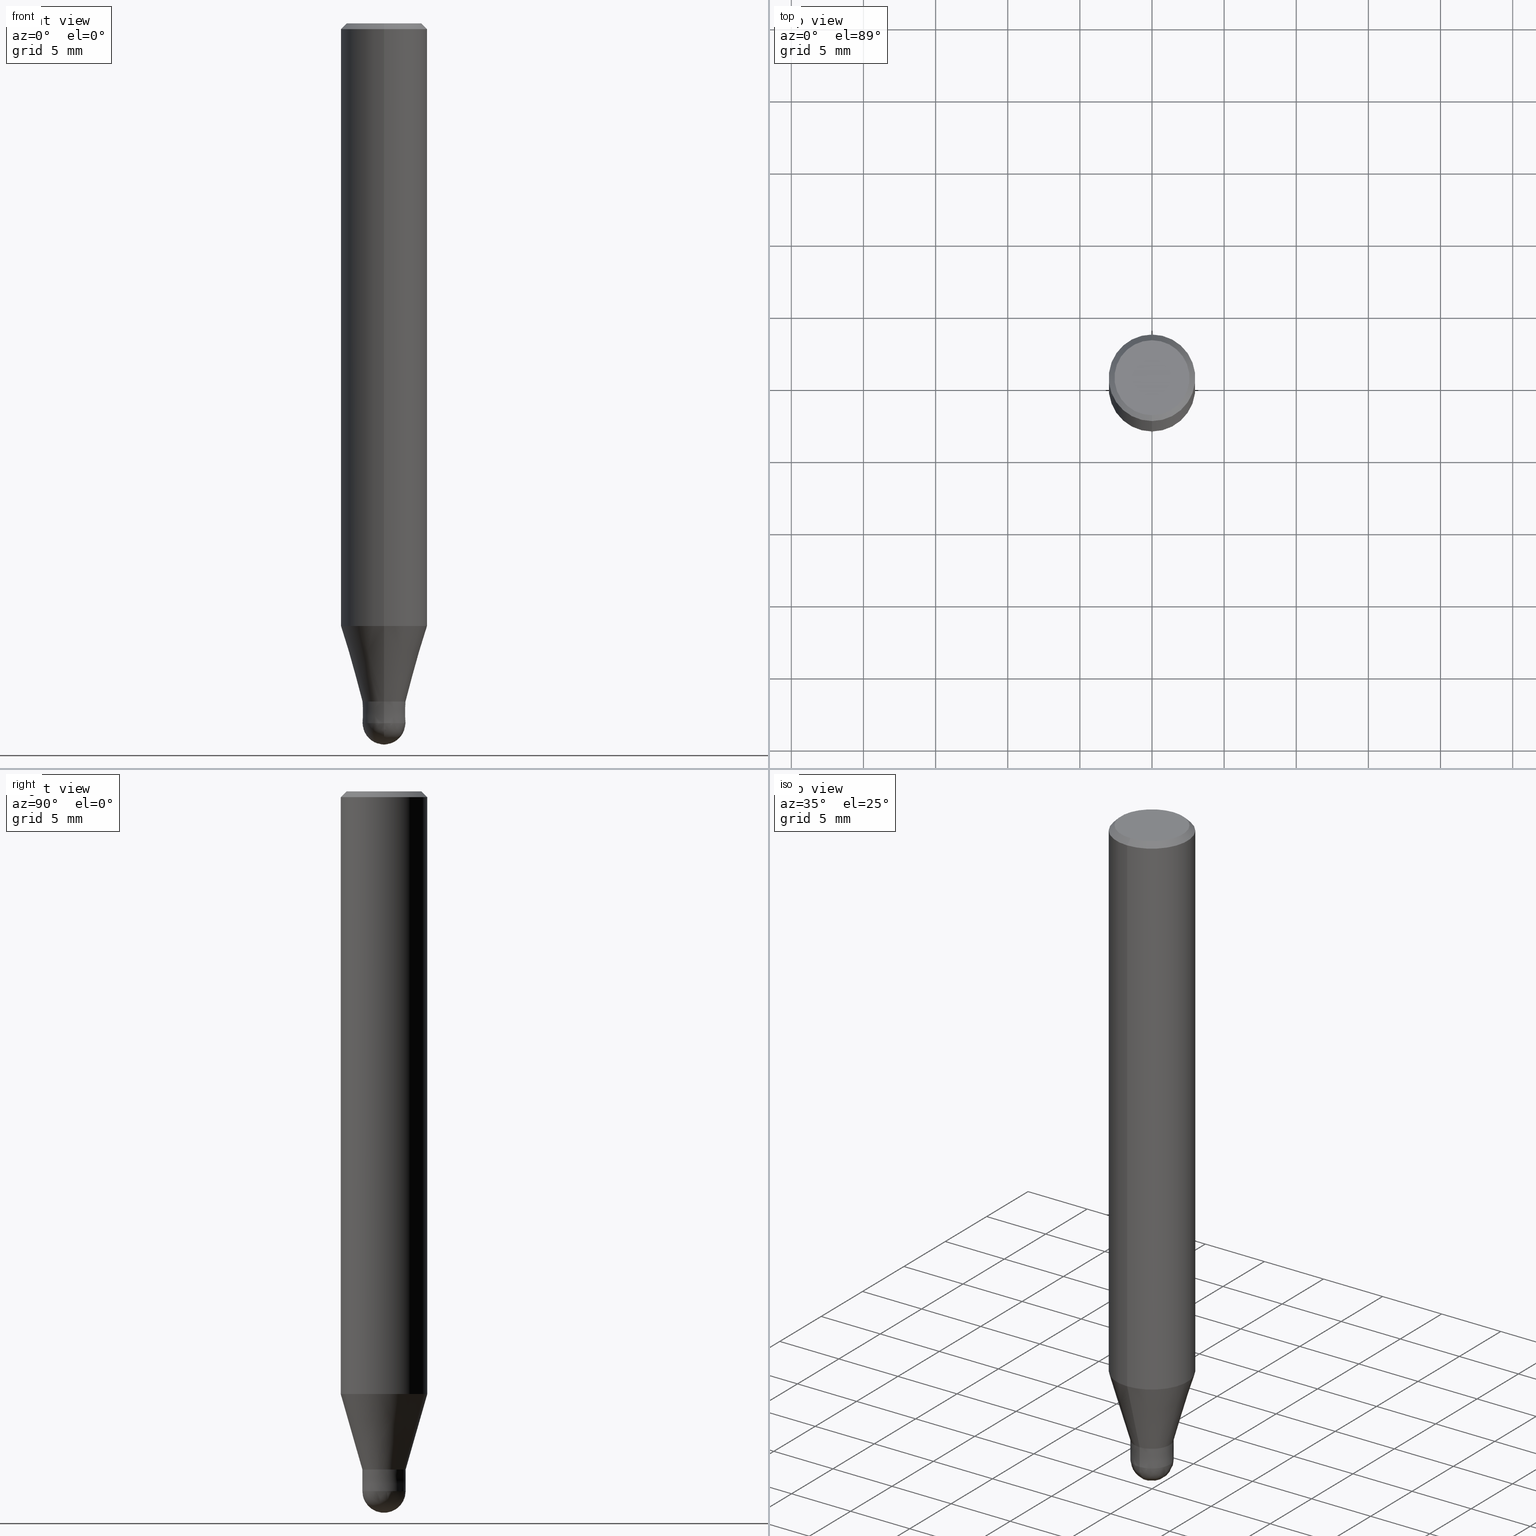
[diagram: canonical four-view strip — front | top / right | iso, engineering-drawing reading convention]
A machine part, canonical four-view strip (front | top / right | iso — engineering-drawing reading convention). The complete STEP part file that produces these views, byte-faithful:
ISO-10303-21;
HEADER;
FILE_DESCRIPTION(('no description'),'unknown implementation level');
FILE_NAME('HSB2030-0300-Huellk.stp','  ',('CIMSOURCE GmbH'),('CADClick - KiM GmbH - www.kimweb.de'),'unknown preprocess','ACIS','unknown authorization');
FILE_SCHEMA(('automotive_design'));
ENDSEC;
DATA;
#1=MECHANICAL_DESIGN_GEOMETRIC_PRESENTATION_REPRESENTATION(' ',(#14,#15,#16,#17,#18,#19,#20,#21,#22,#23,#24,#25,#26,#27,#28,#29,#30,#31,#32,#33,#34,#35,#36,#37,#38,#39,#40,#41,#42,#43,#44,#45,#46,#47,#48,#49,#50,#51,#52,#53,#54,#55,#56,#57,#58,#59,#60,#61,#62,#63,#64,#65,#66),#10);
#2=PRODUCT_DEFINITION_CONTEXT('',#67,'design');
#3=APPLICATION_PROTOCOL_DEFINITION('INTERNATIONAL STANDARD','automotive_design',1994,#67);
#4=PRODUCT_CATEGORY_RELATIONSHIP('NONE','NONE',#68,#69);
#5=SHAPE_DEFINITION_REPRESENTATION(#70,#71);
#6=PRODUCT_DEFINITION_CONTEXT('',#72,'design');
#7=APPLICATION_PROTOCOL_DEFINITION('INTERNATIONAL STANDARD','automotive_design',1994,#72);
#8=PRODUCT_CATEGORY_RELATIONSHIP('NONE','NONE',#73,#74);
#9=SHAPE_DEFINITION_REPRESENTATION(#75,#76);
#10= (GEOMETRIC_REPRESENTATION_CONTEXT(3)GLOBAL_UNCERTAINTY_ASSIGNED_CONTEXT((#79))GLOBAL_UNIT_ASSIGNED_CONTEXT((#81,#82,#83))REPRESENTATION_CONTEXT('NONE','WORKSPACE'));
#14=STYLED_ITEM('',(#85),#86);
#15=STYLED_ITEM('',(#87),#88);
#16=STYLED_ITEM('',(#89),#90);
#17=STYLED_ITEM('',(#91),#92);
#18=STYLED_ITEM('',(#93),#94);
#19=STYLED_ITEM('',(#95),#96);
#20=STYLED_ITEM('',(#97),#98);
#21=STYLED_ITEM('',(#99),#100);
#22=STYLED_ITEM('',(#101),#102);
#23=STYLED_ITEM('',(#103),#104);
#24=STYLED_ITEM('',(#105),#106);
#25=STYLED_ITEM('',(#107),#108);
#26=STYLED_ITEM('',(#109),#110);
#27=STYLED_ITEM('',(#111),#112);
#28=STYLED_ITEM('',(#113),#114);
#29=STYLED_ITEM('',(#115),#116);
#30=STYLED_ITEM('',(#117),#118);
#31=STYLED_ITEM('',(#119),#120);
#32=STYLED_ITEM('',(#121),#122);
#33=STYLED_ITEM('',(#123),#124);
#34=STYLED_ITEM('',(#125),#126);
#35=STYLED_ITEM('',(#127),#128);
#36=STYLED_ITEM('',(#129),#130);
#37=STYLED_ITEM('',(#131),#132);
#38=STYLED_ITEM('',(#133),#134);
#39=STYLED_ITEM('',(#135),#136);
#40=STYLED_ITEM('',(#137),#138);
#41=STYLED_ITEM('',(#139),#140);
#42=STYLED_ITEM('',(#141),#142);
#43=STYLED_ITEM('',(#143),#144);
#44=STYLED_ITEM('',(#145),#146);
#45=STYLED_ITEM('',(#147),#148);
#46=STYLED_ITEM('',(#149),#150);
#47=STYLED_ITEM('',(#151),#152);
#48=STYLED_ITEM('',(#153),#154);
#49=STYLED_ITEM('',(#155),#156);
#50=STYLED_ITEM('',(#157),#158);
#51=STYLED_ITEM('',(#159),#160);
#52=STYLED_ITEM('',(#161),#162);
#53=STYLED_ITEM('',(#163),#164);
#54=STYLED_ITEM('',(#165),#166);
#55=STYLED_ITEM('',(#167),#168);
#56=STYLED_ITEM('',(#169),#170);
#57=STYLED_ITEM('',(#171),#172);
#58=STYLED_ITEM('',(#173),#174);
#59=STYLED_ITEM('',(#175),#176);
#60=STYLED_ITEM('',(#177),#178);
#61=STYLED_ITEM('',(#179),#180);
#62=STYLED_ITEM('',(#181),#182);
#63=STYLED_ITEM('',(#183),#184);
#64=STYLED_ITEM('',(#185),#186);
#65=STYLED_ITEM('',(#187),#188);
#66=STYLED_ITEM('',(#189),#190);
#67=APPLICATION_CONTEXT(' ');
#68=PRODUCT_CATEGORY('part','NONE');
#69=PRODUCT_RELATED_PRODUCT_CATEGORY('detail',' ',(#191));
#70=PRODUCT_DEFINITION_SHAPE('NONE','NONE',#192);
#71=ADVANCED_BREP_SHAPE_REPRESENTATION('1',(#162,#193),#10);
#72=APPLICATION_CONTEXT(' ');
#73=PRODUCT_CATEGORY('part','NONE');
#74=PRODUCT_RELATED_PRODUCT_CATEGORY('detail',' ',(#194));
#75=PRODUCT_DEFINITION_SHAPE('NONE','NONE',#195);
#76=ADVANCED_BREP_SHAPE_REPRESENTATION('2',(#116,#196),#10);
#79=UNCERTAINTY_MEASURE_WITH_UNIT(LENGTH_MEASURE(1.0E-006),#81,'','');
#81= (CONVERSION_BASED_UNIT('MILLIMETRE',#199)LENGTH_UNIT()NAMED_UNIT(#202));
#82= (NAMED_UNIT(#204)PLANE_ANGLE_UNIT()SI_UNIT($,.RADIAN.));
#83= (NAMED_UNIT(#204)SOLID_ANGLE_UNIT()SI_UNIT($,.STERADIAN.));
#85=PRESENTATION_STYLE_ASSIGNMENT((#210));
#86=EDGE_CURVE('',#172,#140,#211,.T.);
#87=PRESENTATION_STYLE_ASSIGNMENT((#212));
#88=VERTEX_POINT('',#213);
#89=PRESENTATION_STYLE_ASSIGNMENT((#214));
#90=EDGE_CURVE('',#132,#168,#215,.T.);
#91=PRESENTATION_STYLE_ASSIGNMENT((#216));
#92=EDGE_CURVE('',#168,#102,#217,.T.);
#93=PRESENTATION_STYLE_ASSIGNMENT((#218));
#94=VERTEX_POINT('',#219);
#95=PRESENTATION_STYLE_ASSIGNMENT((#220));
#96=EDGE_CURVE('',#122,#136,#221,.T.);
#97=PRESENTATION_STYLE_ASSIGNMENT((#222));
#98=VERTEX_POINT('',#223);
#99=PRESENTATION_STYLE_ASSIGNMENT((#224));
#100=EDGE_CURVE('',#114,#134,#225,.T.);
#101=PRESENTATION_STYLE_ASSIGNMENT((#226));
#102=VERTEX_POINT('',#227);
#103=PRESENTATION_STYLE_ASSIGNMENT((#228));
#104=EDGE_CURVE('',#102,#112,#229,.T.);
#105=PRESENTATION_STYLE_ASSIGNMENT((#230));
#106=ADVANCED_FACE('',(#231),#232,.T.);
#107=PRESENTATION_STYLE_ASSIGNMENT((#233));
#108=EDGE_CURVE('',#98,#88,#234,.T.);
#109=PRESENTATION_STYLE_ASSIGNMENT((#235));
#110=ADVANCED_FACE('',(#236),#237,.T.);
#111=PRESENTATION_STYLE_ASSIGNMENT((#238));
#112=VERTEX_POINT('',#239);
#113=PRESENTATION_STYLE_ASSIGNMENT((#240));
#114=VERTEX_POINT('',#241);
#115=PRESENTATION_STYLE_ASSIGNMENT((#242));
#116=MANIFOLD_SOLID_BREP('2',#243);
#117=PRESENTATION_STYLE_ASSIGNMENT((#244));
#118=EDGE_CURVE('',#102,#168,#245,.T.);
#119=PRESENTATION_STYLE_ASSIGNMENT((#246));
#120=ADVANCED_FACE('',(#247),#248,.T.);
#121=PRESENTATION_STYLE_ASSIGNMENT((#249));
#122=VERTEX_POINT('',#250);
#123=PRESENTATION_STYLE_ASSIGNMENT((#251));
#124=ADVANCED_FACE('',(#252),#253,.T.);
#125=PRESENTATION_STYLE_ASSIGNMENT((#254));
#126=EDGE_CURVE('',#94,#148,#255,.T.);
#127=PRESENTATION_STYLE_ASSIGNMENT((#256));
#128=EDGE_CURVE('',#172,#140,#257,.T.);
#129=PRESENTATION_STYLE_ASSIGNMENT((#258));
#130=EDGE_CURVE('',#140,#172,#259,.T.);
#131=PRESENTATION_STYLE_ASSIGNMENT((#260));
#132=VERTEX_POINT('',#261);
#133=PRESENTATION_STYLE_ASSIGNMENT((#262));
#134=VERTEX_POINT('',#263);
#135=PRESENTATION_STYLE_ASSIGNMENT((#264));
#136=VERTEX_POINT('',#265);
#137=PRESENTATION_STYLE_ASSIGNMENT((#266));
#138=EDGE_CURVE('',#94,#88,#267,.T.);
#139=PRESENTATION_STYLE_ASSIGNMENT((#268));
#140=VERTEX_POINT('',#269);
#141=PRESENTATION_STYLE_ASSIGNMENT((#270));
#142=ADVANCED_FACE('',(#271),#272,.T.);
#143=PRESENTATION_STYLE_ASSIGNMENT((#273));
#144=EDGE_CURVE('',#88,#94,#274,.T.);
#145=PRESENTATION_STYLE_ASSIGNMENT((#275));
#146=ADVANCED_FACE('',(#276,#277),#278,.T.);
#147=PRESENTATION_STYLE_ASSIGNMENT((#279));
#148=VERTEX_POINT('',#280);
#149=PRESENTATION_STYLE_ASSIGNMENT((#281));
#150=ADVANCED_FACE('',(#282),#283,.T.);
#151=PRESENTATION_STYLE_ASSIGNMENT((#284));
#152=EDGE_CURVE('',#134,#102,#285,.T.);
#153=PRESENTATION_STYLE_ASSIGNMENT((#286));
#154=EDGE_CURVE('',#112,#132,#287,.T.);
#155=PRESENTATION_STYLE_ASSIGNMENT((#288));
#156=ADVANCED_FACE('',(#289),#290,.T.);
#157=PRESENTATION_STYLE_ASSIGNMENT((#291));
#158=EDGE_CURVE('',#122,#140,#292,.T.);
#159=PRESENTATION_STYLE_ASSIGNMENT((#293));
#160=ADVANCED_FACE('',(#294),#295,.T.);
#161=PRESENTATION_STYLE_ASSIGNMENT((#296));
#162=MANIFOLD_SOLID_BREP('1',#297);
#163=PRESENTATION_STYLE_ASSIGNMENT((#298));
#164=EDGE_CURVE('',#172,#136,#299,.T.);
#165=PRESENTATION_STYLE_ASSIGNMENT((#300));
#166=ADVANCED_FACE('',(#301),#302,.T.);
#167=PRESENTATION_STYLE_ASSIGNMENT((#303));
#168=VERTEX_POINT('',#304);
#169=PRESENTATION_STYLE_ASSIGNMENT((#305));
#170=EDGE_CURVE('',#98,#148,#306,.T.);
#171=PRESENTATION_STYLE_ASSIGNMENT((#307));
#172=VERTEX_POINT('',#308);
#173=PRESENTATION_STYLE_ASSIGNMENT((#309));
#174=EDGE_CURVE('',#148,#98,#310,.T.);
#175=PRESENTATION_STYLE_ASSIGNMENT((#311));
#176=ADVANCED_FACE('',(#312),#313,.T.);
#177=PRESENTATION_STYLE_ASSIGNMENT((#314));
#178=EDGE_CURVE('',#136,#122,#315,.T.);
#179=PRESENTATION_STYLE_ASSIGNMENT((#316));
#180=EDGE_CURVE('',#134,#114,#317,.T.);
#181=PRESENTATION_STYLE_ASSIGNMENT((#318));
#182=ADVANCED_FACE('',(#319),#320,.T.);
#183=PRESENTATION_STYLE_ASSIGNMENT((#321));
#184=ADVANCED_FACE('',(#322),#323,.T.);
#185=PRESENTATION_STYLE_ASSIGNMENT((#324));
#186=EDGE_CURVE('',#168,#114,#325,.T.);
#187=PRESENTATION_STYLE_ASSIGNMENT((#326));
#188=EDGE_CURVE('',#132,#112,#327,.T.);
#189=PRESENTATION_STYLE_ASSIGNMENT((#328));
#190=ADVANCED_FACE('',(#329),#330,.T.);
#191=PRODUCT('1','1','PART-1-DESC',(#331));
#192=PRODUCT_DEFINITION('NONE','NONE',#332,#2);
#193=AXIS2_PLACEMENT_3D('',#333,#334,#335);
#194=PRODUCT('2','2','PART-2-DESC',(#336));
#195=PRODUCT_DEFINITION('NONE','NONE',#337,#6);
#196=AXIS2_PLACEMENT_3D('',#338,#339,#340);
#199=LENGTH_MEASURE_WITH_UNIT(LENGTH_MEASURE(1.0),#341);
#202=DIMENSIONAL_EXPONENTS(1.0,0.0,0.0,0.0,0.0,0.0,0.0);
#204=DIMENSIONAL_EXPONENTS(0.0,0.0,0.0,0.0,0.0,0.0,0.0);
#210=CURVE_STYLE('',#342,POSITIVE_LENGTH_MEASURE(1.0E-006),#343);
#211=CIRCLE('',#344,1.5);
#212=POINT_STYLE(' ',#345,POSITIVE_LENGTH_MEASURE(1.0E-006),#346);
#213=CARTESIAN_POINT('',(0.0,1.49995,-47.0));
#214=CURVE_STYLE('',#347,POSITIVE_LENGTH_MEASURE(1.0E-006),#348);
#215=LINE('',#349,#350);
#216=CURVE_STYLE('',#351,POSITIVE_LENGTH_MEASURE(1.0E-006),#352);
#217=CIRCLE('',#353,3.0);
#218=POINT_STYLE(' ',#354,POSITIVE_LENGTH_MEASURE(1.0E-006),#355);
#219=CARTESIAN_POINT('',(1.83684830041587E-016,-1.49995,-47.0));
#220=CURVE_STYLE('',#356,POSITIVE_LENGTH_MEASURE(1.0E-006),#357);
#221=CIRCLE('',#358,1.4999);
#222=POINT_STYLE(' ',#359,POSITIVE_LENGTH_MEASURE(1.0E-006),#360);
#223=CARTESIAN_POINT('',(0.0,2.99995,-41.769));
#224=CURVE_STYLE('',#361,POSITIVE_LENGTH_MEASURE(1.0E-006),#362);
#225=CIRCLE('',#363,2.6);
#226=POINT_STYLE(' ',#364,POSITIVE_LENGTH_MEASURE(1.0E-006),#365);
#227=CARTESIAN_POINT('',(0.0,3.0,-0.399999999999999));
#228=CURVE_STYLE('',#366,POSITIVE_LENGTH_MEASURE(1.0E-006),#367);
#229=LINE('',#368,#369);
#230=SURFACE_STYLE_USAGE(.BOTH.,#370);
#231=FACE_OUTER_BOUND('',#371,.T.);
#232=PLANE('',#372);
#233=CURVE_STYLE('',#373,POSITIVE_LENGTH_MEASURE(1.0E-006),#374);
#234=LINE('',#375,#376);
#235=SURFACE_STYLE_USAGE(.BOTH.,#377);
#236=FACE_OUTER_BOUND('',#378,.T.);
#237=CYLINDRICAL_SURFACE('',#379,3.0);
#238=POINT_STYLE(' ',#380,POSITIVE_LENGTH_MEASURE(1.0E-006),#381);
#239=CARTESIAN_POINT('',(0.0,3.0,-41.769));
#240=POINT_STYLE(' ',#382,POSITIVE_LENGTH_MEASURE(1.0E-006),#383);
#241=CARTESIAN_POINT('',(3.18397651993818E-016,-2.6,0.0));
#242=SURFACE_STYLE_USAGE(.BOTH.,#384);
#243=CLOSED_SHELL('',(#156,#190,#106,#176,#184));
#244=CURVE_STYLE('',#385,POSITIVE_LENGTH_MEASURE(1.0E-006),#386);
#245=CIRCLE('',#387,3.0);
#246=SURFACE_STYLE_USAGE(.BOTH.,#388);
#247=FACE_OUTER_BOUND('',#389,.T.);
#248=PLANE('',#390);
#249=POINT_STYLE(' ',#391,POSITIVE_LENGTH_MEASURE(1.0E-006),#392);
#250=CARTESIAN_POINT('',(0.0,1.4999,-47.0));
#251=SURFACE_STYLE_USAGE(.BOTH.,#393);
#252=FACE_OUTER_BOUND('',#394,.T.);
#253=CYLINDRICAL_SURFACE('',#395,3.0);
#254=CURVE_STYLE('',#396,POSITIVE_LENGTH_MEASURE(1.0E-006),#397);
#255=LINE('',#398,#399);
#256=CURVE_STYLE('',#400,POSITIVE_LENGTH_MEASURE(1.0E-006),#401);
#257=CIRCLE('',#402,1.5);
#258=CURVE_STYLE('',#403,POSITIVE_LENGTH_MEASURE(1.0E-006),#404);
#259=CIRCLE('',#405,1.5);
#260=POINT_STYLE(' ',#406,POSITIVE_LENGTH_MEASURE(1.0E-006),#407);
#261=CARTESIAN_POINT('',(3.67381906146713E-016,-3.0,-41.769));
#262=POINT_STYLE(' ',#408,POSITIVE_LENGTH_MEASURE(1.0E-006),#409);
#263=CARTESIAN_POINT('',(0.0,2.6,0.0));
#264=POINT_STYLE(' ',#410,POSITIVE_LENGTH_MEASURE(1.0E-006),#411);
#265=CARTESIAN_POINT('',(1.83678707009818E-016,-1.4999,-47.0));
#266=CURVE_STYLE('',#412,POSITIVE_LENGTH_MEASURE(1.0E-006),#413);
#267=CIRCLE('',#414,1.49995);
#268=POINT_STYLE(' ',#415,POSITIVE_LENGTH_MEASURE(1.0E-006),#416);
#269=CARTESIAN_POINT('',(0.0,1.5,-48.5));
#270=SURFACE_STYLE_USAGE(.BOTH.,#417);
#271=FACE_OUTER_BOUND('',#418,.T.);
#272=PLANE('',#419);
#273=CURVE_STYLE('',#420,POSITIVE_LENGTH_MEASURE(1.0E-006),#421);
#274=CIRCLE('',#422,1.49995);
#275=SURFACE_STYLE_USAGE(.BOTH.,#423);
#276=FACE_OUTER_BOUND('',#424,.T.);
#277=FACE_BOUND('',#425,.T.);
#278=PLANE('',#426);
#279=POINT_STYLE(' ',#427,POSITIVE_LENGTH_MEASURE(1.0E-006),#428);
#280=CARTESIAN_POINT('',(3.67375783114944E-016,-2.99995,-41.769));
#281=SURFACE_STYLE_USAGE(.BOTH.,#429);
#282=FACE_OUTER_BOUND('',#430,.T.);
#283=CONICAL_SURFACE('',#431,2.8,0.78539816339745);
#284=CURVE_STYLE('',#432,POSITIVE_LENGTH_MEASURE(1.0E-006),#433);
#285=LINE('',#434,#435);
#286=CURVE_STYLE('',#436,POSITIVE_LENGTH_MEASURE(1.0E-006),#437);
#287=CIRCLE('',#438,3.0);
#288=SURFACE_STYLE_USAGE(.BOTH.,#439);
#289=FACE_OUTER_BOUND('',#440,.T.);
#290=SPHERICAL_SURFACE('',#441,1.5);
#291=CURVE_STYLE('',#442,POSITIVE_LENGTH_MEASURE(1.0E-006),#443);
#292=LINE('',#444,#445);
#293=SURFACE_STYLE_USAGE(.BOTH.,#446);
#294=FACE_OUTER_BOUND('',#447,.T.);
#295=CONICAL_SURFACE('',#448,2.24995,0.279258842899557);
#296=SURFACE_STYLE_USAGE(.BOTH.,#449);
#297=CLOSED_SHELL('',(#160,#110,#166,#146,#120,#150,#124,#182,#142));
#298=CURVE_STYLE('',#450,POSITIVE_LENGTH_MEASURE(1.0E-006),#451);
#299=LINE('',#452,#453);
#300=SURFACE_STYLE_USAGE(.BOTH.,#454);
#301=FACE_OUTER_BOUND('',#455,.T.);
#302=CONICAL_SURFACE('',#456,2.8,0.78539816339745);
#303=POINT_STYLE(' ',#457,POSITIVE_LENGTH_MEASURE(1.0E-006),#458);
#304=CARTESIAN_POINT('',(3.67381906146713E-016,-3.0,-0.399999999999999));
#305=CURVE_STYLE('',#459,POSITIVE_LENGTH_MEASURE(1.0E-006),#460);
#306=CIRCLE('',#461,2.99995);
#307=POINT_STYLE(' ',#462,POSITIVE_LENGTH_MEASURE(1.0E-006),#463);
#308=CARTESIAN_POINT('',(1.83690953073356E-016,-1.5,-48.5));
#309=CURVE_STYLE('',#464,POSITIVE_LENGTH_MEASURE(1.0E-006),#465);
#310=CIRCLE('',#466,2.99995);
#311=SURFACE_STYLE_USAGE(.BOTH.,#467);
#312=FACE_OUTER_BOUND('',#468,.T.);
#313=CONICAL_SURFACE('',#469,1.49995,6.66666665680419E-005);
#314=CURVE_STYLE('',#470,POSITIVE_LENGTH_MEASURE(1.0E-006),#471);
#315=CIRCLE('',#472,1.4999);
#316=CURVE_STYLE('',#473,POSITIVE_LENGTH_MEASURE(1.0E-006),#474);
#317=CIRCLE('',#475,2.6);
#318=SURFACE_STYLE_USAGE(.BOTH.,#476);
#319=FACE_OUTER_BOUND('',#477,.T.);
#320=CONICAL_SURFACE('',#478,2.24995,0.279258842899557);
#321=SURFACE_STYLE_USAGE(.BOTH.,#479);
#322=FACE_OUTER_BOUND('',#480,.T.);
#323=SPHERICAL_SURFACE('',#481,1.5);
#324=CURVE_STYLE('',#482,POSITIVE_LENGTH_MEASURE(1.0E-006),#483);
#325=LINE('',#484,#485);
#326=CURVE_STYLE('',#486,POSITIVE_LENGTH_MEASURE(1.0E-006),#487);
#327=CIRCLE('',#488,3.0);
#328=SURFACE_STYLE_USAGE(.BOTH.,#489);
#329=FACE_OUTER_BOUND('',#490,.T.);
#330=CONICAL_SURFACE('',#491,1.49995,6.66666665680419E-005);
#331=PRODUCT_CONTEXT('',#67,'mechanical');
#332=PRODUCT_DEFINITION_FORMATION_WITH_SPECIFIED_SOURCE(' ','NONE',#191,.NOT_KNOWN.);
#333=CARTESIAN_POINT('',(0.0,0.0,0.0));
#334=DIRECTION('',(0.0,0.0,1.0));
#335=DIRECTION('',(1.0,0.0,0.0));
#336=PRODUCT_CONTEXT('',#72,'mechanical');
#337=PRODUCT_DEFINITION_FORMATION_WITH_SPECIFIED_SOURCE(' ','NONE',#194,.NOT_KNOWN.);
#338=CARTESIAN_POINT('',(0.0,0.0,0.0));
#339=DIRECTION('',(0.0,0.0,1.0));
#340=DIRECTION('',(1.0,0.0,0.0));
#341= (NAMED_UNIT(#202)LENGTH_UNIT()SI_UNIT(.MILLI.,.METRE.));
#342=DRAUGHTING_PRE_DEFINED_CURVE_FONT('continuous');
#343=COLOUR_RGB('',0.800000011920929,0.800000011920929,0.800000011920929);
#344=AXIS2_PLACEMENT_3D('',#493,#494,#495);
#345=PRE_DEFINED_MARKER('');
#346=COLOUR_RGB('',0.498039215803146,0.498039215803146,0.498039215803146);
#347=DRAUGHTING_PRE_DEFINED_CURVE_FONT('continuous');
#348=COLOUR_RGB('',0.498039215803146,0.498039215803146,0.498039215803146);
#349=CARTESIAN_POINT('',(3.67381906146713E-016,-3.0,-21.0845));
#350=VECTOR('',#496,1.0);
#351=DRAUGHTING_PRE_DEFINED_CURVE_FONT('continuous');
#352=COLOUR_RGB('',0.498039215803146,0.498039215803146,0.498039215803146);
#353=AXIS2_PLACEMENT_3D('',#497,#498,#499);
#354=PRE_DEFINED_MARKER('');
#355=COLOUR_RGB('',0.498039215803146,0.498039215803146,0.498039215803146);
#356=DRAUGHTING_PRE_DEFINED_CURVE_FONT('continuous');
#357=COLOUR_RGB('',0.800000011920929,0.800000011920929,0.800000011920929);
#358=AXIS2_PLACEMENT_3D('',#500,#501,#502);
#359=PRE_DEFINED_MARKER('');
#360=COLOUR_RGB('',0.498039215803146,0.498039215803146,0.498039215803146);
#361=DRAUGHTING_PRE_DEFINED_CURVE_FONT('continuous');
#362=COLOUR_RGB('',0.498039215803146,0.498039215803146,0.498039215803146);
#363=AXIS2_PLACEMENT_3D('',#503,#504,#505);
#364=PRE_DEFINED_MARKER('');
#365=COLOUR_RGB('',0.498039215803146,0.498039215803146,0.498039215803146);
#366=DRAUGHTING_PRE_DEFINED_CURVE_FONT('continuous');
#367=COLOUR_RGB('',0.498039215803146,0.498039215803146,0.498039215803146);
#368=CARTESIAN_POINT('',(-3.67381906146713E-016,3.0,-21.0845));
#369=VECTOR('',#506,1.0);
#370=SURFACE_SIDE_STYLE('',(#507));
#371=EDGE_LOOP('',(#508,#509));
#372=AXIS2_PLACEMENT_3D('',#510,#511,#512);
#373=DRAUGHTING_PRE_DEFINED_CURVE_FONT('continuous');
#374=COLOUR_RGB('',0.498039215803146,0.498039215803146,0.498039215803146);
#375=CARTESIAN_POINT('',(-2.75530306578266E-016,2.24995,-44.3845));
#376=VECTOR('',#513,1.0);
#377=SURFACE_SIDE_STYLE('',(#514));
#378=EDGE_LOOP('',(#515,#516,#517,#518));
#379=AXIS2_PLACEMENT_3D('',#519,#520,#521);
#380=PRE_DEFINED_MARKER('');
#381=COLOUR_RGB('',0.498039215803146,0.498039215803146,0.498039215803146);
#382=PRE_DEFINED_MARKER('');
#383=COLOUR_RGB('',0.498039215803146,0.498039215803146,0.498039215803146);
#384=SURFACE_SIDE_STYLE('',(#522));
#385=DRAUGHTING_PRE_DEFINED_CURVE_FONT('continuous');
#386=COLOUR_RGB('',0.498039215803146,0.498039215803146,0.498039215803146);
#387=AXIS2_PLACEMENT_3D('',#523,#524,#525);
#388=SURFACE_SIDE_STYLE('',(#526));
#389=EDGE_LOOP('',(#527,#528));
#390=AXIS2_PLACEMENT_3D('',#529,#530,#531);
#391=PRE_DEFINED_MARKER('');
#392=COLOUR_RGB('',0.800000011920929,0.800000011920929,0.800000011920929);
#393=SURFACE_SIDE_STYLE('',(#532));
#394=EDGE_LOOP('',(#533,#534,#535,#536));
#395=AXIS2_PLACEMENT_3D('',#537,#538,#539);
#396=DRAUGHTING_PRE_DEFINED_CURVE_FONT('continuous');
#397=COLOUR_RGB('',0.498039215803146,0.498039215803146,0.498039215803146);
#398=CARTESIAN_POINT('',(2.75530306578266E-016,-2.24995,-44.3845));
#399=VECTOR('',#540,1.0);
#400=DRAUGHTING_PRE_DEFINED_CURVE_FONT('continuous');
#401=COLOUR_RGB('',0.800000011920929,0.800000011920929,0.800000011920929);
#402=AXIS2_PLACEMENT_3D('',#541,#542,#543);
#403=DRAUGHTING_PRE_DEFINED_CURVE_FONT('continuous');
#404=COLOUR_RGB('',0.800000011920929,0.800000011920929,0.800000011920929);
#405=AXIS2_PLACEMENT_3D('',#544,#545,#546);
#406=PRE_DEFINED_MARKER('');
#407=COLOUR_RGB('',0.498039215803146,0.498039215803146,0.498039215803146);
#408=PRE_DEFINED_MARKER('');
#409=COLOUR_RGB('',0.498039215803146,0.498039215803146,0.498039215803146);
#410=PRE_DEFINED_MARKER('');
#411=COLOUR_RGB('',0.800000011920929,0.800000011920929,0.800000011920929);
#412=DRAUGHTING_PRE_DEFINED_CURVE_FONT('continuous');
#413=COLOUR_RGB('',0.498039215803146,0.498039215803146,0.498039215803146);
#414=AXIS2_PLACEMENT_3D('',#547,#548,#549);
#415=PRE_DEFINED_MARKER('');
#416=COLOUR_RGB('',0.800000011920929,0.800000011920929,0.800000011920929);
#417=SURFACE_SIDE_STYLE('',(#550));
#418=EDGE_LOOP('',(#551,#552));
#419=AXIS2_PLACEMENT_3D('',#553,#554,#555);
#420=DRAUGHTING_PRE_DEFINED_CURVE_FONT('continuous');
#421=COLOUR_RGB('',0.498039215803146,0.498039215803146,0.498039215803146);
#422=AXIS2_PLACEMENT_3D('',#556,#557,#558);
#423=SURFACE_SIDE_STYLE('',(#559));
#424=EDGE_LOOP('',(#560,#561));
#425=EDGE_LOOP('',(#562,#563));
#426=AXIS2_PLACEMENT_3D('',#564,#565,#566);
#427=PRE_DEFINED_MARKER('');
#428=COLOUR_RGB('',0.498039215803146,0.498039215803146,0.498039215803146);
#429=SURFACE_SIDE_STYLE('',(#567));
#430=EDGE_LOOP('',(#568,#569,#570,#571));
#431=AXIS2_PLACEMENT_3D('',#572,#573,#574);
#432=DRAUGHTING_PRE_DEFINED_CURVE_FONT('continuous');
#433=COLOUR_RGB('',0.498039215803146,0.498039215803146,0.498039215803146);
#434=CARTESIAN_POINT('',(-3.42889779070266E-016,2.8,-0.200000000000003));
#435=VECTOR('',#575,1.0);
#436=DRAUGHTING_PRE_DEFINED_CURVE_FONT('continuous');
#437=COLOUR_RGB('',0.498039215803146,0.498039215803146,0.498039215803146);
#438=AXIS2_PLACEMENT_3D('',#576,#577,#578);
#439=SURFACE_SIDE_STYLE('',(#579));
#440=EDGE_LOOP('',(#580,#581));
#441=AXIS2_PLACEMENT_3D('',#582,#583,#584);
#442=DRAUGHTING_PRE_DEFINED_CURVE_FONT('continuous');
#443=COLOUR_RGB('',0.800000011920929,0.800000011920929,0.800000011920929);
#444=CARTESIAN_POINT('',(-1.83684830041587E-016,1.49995,-47.75));
#445=VECTOR('',#585,1.0);
#446=SURFACE_SIDE_STYLE('',(#586));
#447=EDGE_LOOP('',(#587,#588,#589,#590));
#448=AXIS2_PLACEMENT_3D('',#591,#592,#593);
#449=SURFACE_SIDE_STYLE('',(#594));
#450=DRAUGHTING_PRE_DEFINED_CURVE_FONT('continuous');
#451=COLOUR_RGB('',0.800000011920929,0.800000011920929,0.800000011920929);
#452=CARTESIAN_POINT('',(1.83684830041587E-016,-1.49995,-47.75));
#453=VECTOR('',#595,1.0);
#454=SURFACE_SIDE_STYLE('',(#596));
#455=EDGE_LOOP('',(#597,#598,#599,#600));
#456=AXIS2_PLACEMENT_3D('',#601,#602,#603);
#457=PRE_DEFINED_MARKER('');
#458=COLOUR_RGB('',0.498039215803146,0.498039215803146,0.498039215803146);
#459=DRAUGHTING_PRE_DEFINED_CURVE_FONT('continuous');
#460=COLOUR_RGB('',0.498039215803146,0.498039215803146,0.498039215803146);
#461=AXIS2_PLACEMENT_3D('',#604,#605,#606);
#462=PRE_DEFINED_MARKER('');
#463=COLOUR_RGB('',0.800000011920929,0.800000011920929,0.800000011920929);
#464=DRAUGHTING_PRE_DEFINED_CURVE_FONT('continuous');
#465=COLOUR_RGB('',0.498039215803146,0.498039215803146,0.498039215803146);
#466=AXIS2_PLACEMENT_3D('',#607,#608,#609);
#467=SURFACE_SIDE_STYLE('',(#610));
#468=EDGE_LOOP('',(#611,#612,#613,#614));
#469=AXIS2_PLACEMENT_3D('',#615,#616,#617);
#470=DRAUGHTING_PRE_DEFINED_CURVE_FONT('continuous');
#471=COLOUR_RGB('',0.800000011920929,0.800000011920929,0.800000011920929);
#472=AXIS2_PLACEMENT_3D('',#618,#619,#620);
#473=DRAUGHTING_PRE_DEFINED_CURVE_FONT('continuous');
#474=COLOUR_RGB('',0.498039215803146,0.498039215803146,0.498039215803146);
#475=AXIS2_PLACEMENT_3D('',#621,#622,#623);
#476=SURFACE_SIDE_STYLE('',(#624));
#477=EDGE_LOOP('',(#625,#626,#627,#628));
#478=AXIS2_PLACEMENT_3D('',#629,#630,#631);
#479=SURFACE_SIDE_STYLE('',(#632));
#480=EDGE_LOOP('',(#633,#634));
#481=AXIS2_PLACEMENT_3D('',#635,#636,#637);
#482=DRAUGHTING_PRE_DEFINED_CURVE_FONT('continuous');
#483=COLOUR_RGB('',0.498039215803146,0.498039215803146,0.498039215803146);
#484=CARTESIAN_POINT('',(3.42889779070266E-016,-2.8,-0.200000000000003));
#485=VECTOR('',#638,1.0);
#486=DRAUGHTING_PRE_DEFINED_CURVE_FONT('continuous');
#487=COLOUR_RGB('',0.498039215803146,0.498039215803146,0.498039215803146);
#488=AXIS2_PLACEMENT_3D('',#639,#640,#641);
#489=SURFACE_SIDE_STYLE('',(#642));
#490=EDGE_LOOP('',(#643,#644,#645,#646));
#491=AXIS2_PLACEMENT_3D('',#647,#648,#649);
#493=CARTESIAN_POINT('',(0.0,0.0,-48.5));
#494=DIRECTION('',(0.0,0.0,-1.0));
#495=DIRECTION('',(0.0,1.0,0.0));
#496=DIRECTION('',(-0.0,-0.0,1.0));
#497=CARTESIAN_POINT('',(0.0,0.0,-0.399999999999999));
#498=DIRECTION('',(0.0,0.0,-1.0));
#499=DIRECTION('',(0.0,1.0,0.0));
#500=CARTESIAN_POINT('',(0.0,0.0,-47.0));
#501=DIRECTION('',(0.0,0.0,-1.0));
#502=DIRECTION('',(0.0,1.0,0.0));
#503=CARTESIAN_POINT('',(0.0,0.0,0.0));
#504=DIRECTION('',(0.0,0.0,-1.0));
#505=DIRECTION('',(0.0,1.0,0.0));
#506=DIRECTION('',(0.0,0.0,-1.0));
#507=SURFACE_STYLE_FILL_AREA(#650);
#508=ORIENTED_EDGE('',*,*,#96,.F.);
#509=ORIENTED_EDGE('',*,*,#178,.F.);
#510=CARTESIAN_POINT('',(0.0,0.74995,-47.0));
#511=DIRECTION('',(-0.0,0.0,1.0));
#512=DIRECTION('',(0.0,-1.0,0.0));
#513=DIRECTION('',(3.37554511665357E-017,-0.275643279664314,-0.961259997282682));
#514=SURFACE_STYLE_FILL_AREA(#651);
#515=ORIENTED_EDGE('',*,*,#104,.F.);
#516=ORIENTED_EDGE('',*,*,#118,.T.);
#517=ORIENTED_EDGE('',*,*,#90,.F.);
#518=ORIENTED_EDGE('',*,*,#154,.F.);
#519=CARTESIAN_POINT('',(0.0,0.0,-21.0845));
#520=DIRECTION('',(-0.0,-0.0,1.0));
#521=DIRECTION('',(0.0,1.0,0.0));
#522=SURFACE_STYLE_FILL_AREA(#652);
#523=CARTESIAN_POINT('',(0.0,0.0,-0.399999999999999));
#524=DIRECTION('',(0.0,0.0,-1.0));
#525=DIRECTION('',(0.0,1.0,0.0));
#526=SURFACE_STYLE_FILL_AREA(#653);
#527=ORIENTED_EDGE('',*,*,#180,.F.);
#528=ORIENTED_EDGE('',*,*,#100,.F.);
#529=CARTESIAN_POINT('',(0.0,1.3,0.0));
#530=DIRECTION('',(-0.0,0.0,1.0));
#531=DIRECTION('',(0.0,-1.0,0.0));
#532=SURFACE_STYLE_FILL_AREA(#654);
#533=ORIENTED_EDGE('',*,*,#104,.T.);
#534=ORIENTED_EDGE('',*,*,#188,.F.);
#535=ORIENTED_EDGE('',*,*,#90,.T.);
#536=ORIENTED_EDGE('',*,*,#92,.T.);
#537=CARTESIAN_POINT('',(0.0,0.0,-21.0845));
#538=DIRECTION('',(-0.0,-0.0,1.0));
#539=DIRECTION('',(0.0,1.0,0.0));
#540=DIRECTION('',(3.37554511665357E-017,-0.275643279664314,0.961259997282682));
#541=CARTESIAN_POINT('',(0.0,0.0,-48.5));
#542=DIRECTION('',(1.0,0.0,1.22460635382238E-016));
#543=DIRECTION('',(-1.22460635382238E-016,0.0,1.0));
#544=CARTESIAN_POINT('',(0.0,0.0,-48.5));
#545=DIRECTION('',(0.0,0.0,-1.0));
#546=DIRECTION('',(0.0,1.0,0.0));
#547=CARTESIAN_POINT('',(0.0,0.0,-47.0));
#548=DIRECTION('',(0.0,0.0,-1.0));
#549=DIRECTION('',(0.0,1.0,0.0));
#550=SURFACE_STYLE_FILL_AREA(#655);
#551=ORIENTED_EDGE('',*,*,#144,.T.);
#552=ORIENTED_EDGE('',*,*,#138,.T.);
#553=CARTESIAN_POINT('',(0.0,0.749975,-47.0));
#554=DIRECTION('',(0.0,0.0,-1.0));
#555=DIRECTION('',(0.0,1.0,0.0));
#556=CARTESIAN_POINT('',(0.0,0.0,-47.0));
#557=DIRECTION('',(0.0,0.0,-1.0));
#558=DIRECTION('',(0.0,1.0,0.0));
#559=SURFACE_STYLE_FILL_AREA(#656);
#560=ORIENTED_EDGE('',*,*,#154,.T.);
#561=ORIENTED_EDGE('',*,*,#188,.T.);
#562=ORIENTED_EDGE('',*,*,#170,.F.);
#563=ORIENTED_EDGE('',*,*,#174,.F.);
#564=CARTESIAN_POINT('',(0.0,1.5,-41.769));
#565=DIRECTION('',(0.0,0.0,-1.0));
#566=DIRECTION('',(0.0,1.0,0.0));
#567=SURFACE_STYLE_FILL_AREA(#657);
#568=ORIENTED_EDGE('',*,*,#152,.T.);
#569=ORIENTED_EDGE('',*,*,#92,.F.);
#570=ORIENTED_EDGE('',*,*,#186,.T.);
#571=ORIENTED_EDGE('',*,*,#100,.T.);
#572=CARTESIAN_POINT('',(0.0,0.0,-0.200000000000003));
#573=DIRECTION('',(0.0,-0.0,-1.0));
#574=DIRECTION('',(0.0,1.0,0.0));
#575=DIRECTION('',(-8.65927457071937E-017,0.707106781186549,-0.707106781186546));
#576=CARTESIAN_POINT('',(0.0,0.0,-41.769));
#577=DIRECTION('',(0.0,0.0,-1.0));
#578=DIRECTION('',(0.0,1.0,0.0));
#579=SURFACE_STYLE_FILL_AREA(#658);
#580=ORIENTED_EDGE('',*,*,#128,.F.);
#581=ORIENTED_EDGE('',*,*,#86,.T.);
#582=CARTESIAN_POINT('',(0.0,0.0,-48.5));
#583=DIRECTION('',(0.0,1.0,0.0));
#584=DIRECTION('',(0.0,0.0,-1.0));
#585=DIRECTION('',(-8.16404234069076E-021,6.66666665186592E-005,-0.999999997777778));
#586=SURFACE_STYLE_FILL_AREA(#659);
#587=ORIENTED_EDGE('',*,*,#108,.F.);
#588=ORIENTED_EDGE('',*,*,#170,.T.);
#589=ORIENTED_EDGE('',*,*,#126,.F.);
#590=ORIENTED_EDGE('',*,*,#144,.F.);
#591=CARTESIAN_POINT('',(0.0,0.0,-44.3845));
#592=DIRECTION('',(-0.0,-0.0,1.0));
#593=DIRECTION('',(0.0,1.0,0.0));
#594=SURFACE_STYLE_FILL_AREA(#660);
#595=DIRECTION('',(-8.16404234069076E-021,6.66666665186592E-005,0.999999997777778));
#596=SURFACE_STYLE_FILL_AREA(#661);
#597=ORIENTED_EDGE('',*,*,#152,.F.);
#598=ORIENTED_EDGE('',*,*,#180,.T.);
#599=ORIENTED_EDGE('',*,*,#186,.F.);
#600=ORIENTED_EDGE('',*,*,#118,.F.);
#601=CARTESIAN_POINT('',(0.0,0.0,-0.200000000000003));
#602=DIRECTION('',(0.0,-0.0,-1.0));
#603=DIRECTION('',(0.0,1.0,0.0));
#604=CARTESIAN_POINT('',(0.0,0.0,-41.769));
#605=DIRECTION('',(0.0,0.0,-1.0));
#606=DIRECTION('',(0.0,1.0,0.0));
#607=CARTESIAN_POINT('',(0.0,0.0,-41.769));
#608=DIRECTION('',(0.0,0.0,-1.0));
#609=DIRECTION('',(0.0,1.0,0.0));
#610=SURFACE_STYLE_FILL_AREA(#662);
#611=ORIENTED_EDGE('',*,*,#158,.T.);
#612=ORIENTED_EDGE('',*,*,#86,.F.);
#613=ORIENTED_EDGE('',*,*,#164,.T.);
#614=ORIENTED_EDGE('',*,*,#178,.T.);
#615=CARTESIAN_POINT('',(0.0,0.0,-47.75));
#616=DIRECTION('',(0.0,-0.0,-1.0));
#617=DIRECTION('',(0.0,1.0,0.0));
#618=CARTESIAN_POINT('',(0.0,0.0,-47.0));
#619=DIRECTION('',(0.0,0.0,-1.0));
#620=DIRECTION('',(0.0,1.0,0.0));
#621=CARTESIAN_POINT('',(0.0,0.0,0.0));
#622=DIRECTION('',(0.0,0.0,-1.0));
#623=DIRECTION('',(0.0,1.0,0.0));
#624=SURFACE_STYLE_FILL_AREA(#663);
#625=ORIENTED_EDGE('',*,*,#108,.T.);
#626=ORIENTED_EDGE('',*,*,#138,.F.);
#627=ORIENTED_EDGE('',*,*,#126,.T.);
#628=ORIENTED_EDGE('',*,*,#174,.T.);
#629=CARTESIAN_POINT('',(0.0,0.0,-44.3845));
#630=DIRECTION('',(-0.0,-0.0,1.0));
#631=DIRECTION('',(0.0,1.0,0.0));
#632=SURFACE_STYLE_FILL_AREA(#664);
#633=ORIENTED_EDGE('',*,*,#128,.T.);
#634=ORIENTED_EDGE('',*,*,#130,.T.);
#635=CARTESIAN_POINT('',(0.0,0.0,-48.5));
#636=DIRECTION('',(0.0,1.0,0.0));
#637=DIRECTION('',(0.0,0.0,-1.0));
#638=DIRECTION('',(-8.65927457071937E-017,0.707106781186549,0.707106781186546));
#639=CARTESIAN_POINT('',(0.0,0.0,-41.769));
#640=DIRECTION('',(0.0,0.0,-1.0));
#641=DIRECTION('',(0.0,1.0,0.0));
#642=SURFACE_STYLE_FILL_AREA(#665);
#643=ORIENTED_EDGE('',*,*,#158,.F.);
#644=ORIENTED_EDGE('',*,*,#96,.T.);
#645=ORIENTED_EDGE('',*,*,#164,.F.);
#646=ORIENTED_EDGE('',*,*,#130,.F.);
#647=CARTESIAN_POINT('',(0.0,0.0,-47.75));
#648=DIRECTION('',(0.0,-0.0,-1.0));
#649=DIRECTION('',(0.0,1.0,0.0));
#650=FILL_AREA_STYLE('',(#666));
#651=FILL_AREA_STYLE('',(#667));
#652=FILL_AREA_STYLE('',(#668));
#653=FILL_AREA_STYLE('',(#669));
#654=FILL_AREA_STYLE('',(#670));
#655=FILL_AREA_STYLE('',(#671));
#656=FILL_AREA_STYLE('',(#672));
#657=FILL_AREA_STYLE('',(#673));
#658=FILL_AREA_STYLE('',(#674));
#659=FILL_AREA_STYLE('',(#675));
#660=FILL_AREA_STYLE('',(#676));
#661=FILL_AREA_STYLE('',(#677));
#662=FILL_AREA_STYLE('',(#678));
#663=FILL_AREA_STYLE('',(#679));
#664=FILL_AREA_STYLE('',(#680));
#665=FILL_AREA_STYLE('',(#681));
#666=FILL_AREA_STYLE_COLOUR('',#682);
#667=FILL_AREA_STYLE_COLOUR('',#683);
#668=FILL_AREA_STYLE_COLOUR('',#684);
#669=FILL_AREA_STYLE_COLOUR('',#685);
#670=FILL_AREA_STYLE_COLOUR('',#686);
#671=FILL_AREA_STYLE_COLOUR('',#687);
#672=FILL_AREA_STYLE_COLOUR('',#688);
#673=FILL_AREA_STYLE_COLOUR('',#689);
#674=FILL_AREA_STYLE_COLOUR('',#690);
#675=FILL_AREA_STYLE_COLOUR('',#691);
#676=FILL_AREA_STYLE_COLOUR('',#692);
#677=FILL_AREA_STYLE_COLOUR('',#693);
#678=FILL_AREA_STYLE_COLOUR('',#694);
#679=FILL_AREA_STYLE_COLOUR('',#695);
#680=FILL_AREA_STYLE_COLOUR('',#696);
#681=FILL_AREA_STYLE_COLOUR('',#697);
#682=COLOUR_RGB('',0.800000011920929,0.800000011920929,0.800000011920929);
#683=COLOUR_RGB('',0.498039215803146,0.498039215803146,0.498039215803146);
#684=COLOUR_RGB('',0.800000011920929,0.800000011920929,0.800000011920929);
#685=COLOUR_RGB('',0.498039215803146,0.498039215803146,0.498039215803146);
#686=COLOUR_RGB('',0.498039215803146,0.498039215803146,0.498039215803146);
#687=COLOUR_RGB('',0.498039215803146,0.498039215803146,0.498039215803146);
#688=COLOUR_RGB('',0.498039215803146,0.498039215803146,0.498039215803146);
#689=COLOUR_RGB('',0.498039215803146,0.498039215803146,0.498039215803146);
#690=COLOUR_RGB('',0.800000011920929,0.800000011920929,0.800000011920929);
#691=COLOUR_RGB('',0.498039215803146,0.498039215803146,0.498039215803146);
#692=COLOUR_RGB('',0.498039215803146,0.498039215803146,0.498039215803146);
#693=COLOUR_RGB('',0.498039215803146,0.498039215803146,0.498039215803146);
#694=COLOUR_RGB('',0.800000011920929,0.800000011920929,0.800000011920929);
#695=COLOUR_RGB('',0.498039215803146,0.498039215803146,0.498039215803146);
#696=COLOUR_RGB('',0.800000011920929,0.800000011920929,0.800000011920929);
#697=COLOUR_RGB('',0.800000011920929,0.800000011920929,0.800000011920929);
#698=AXIS2_PLACEMENT_3D('PCS',#699,#700,#701);
#699=CARTESIAN_POINT('',(0.0,0.0,0.0));
#700=DIRECTION('',(0.0,0.0,1.0));
#701=DIRECTION('',(1.0,0.0,0.0));
#702=AXIS2_PLACEMENT_3D('CIP',#703,#704,#705);
#703=CARTESIAN_POINT('',(0.0,0.0,-50.0));
#704=DIRECTION('',(0.0,0.0,1.0));
#705=DIRECTION('',(1.0,0.0,0.0));
#706=AXIS2_PLACEMENT_3D('CRP',#707,#708,#709);
#707=CARTESIAN_POINT('',(-1.5,0.0,-50.0));
#708=DIRECTION('',(0.0,0.0,1.0));
#709=DIRECTION('',(1.0,0.0,0.0));
#710=AXIS2_PLACEMENT_3D('MCS',#711,#712,#713);
#711=CARTESIAN_POINT('',(0.0,0.0,-41.769));
#712=DIRECTION('',(0.0,0.0,1.0));
#713=DIRECTION('',(1.0,0.0,0.0));
#714=CONSTRUCTIVE_GEOMETRY_REPRESENTATION_RELATIONSHIP('coordinate systems',$,#71,#715);
#715=CONSTRUCTIVE_GEOMETRY_REPRESENTATION('coordinate systems',(#698,#702,#706,#710),#10);
ENDSEC;
END-ISO-10303-21;
